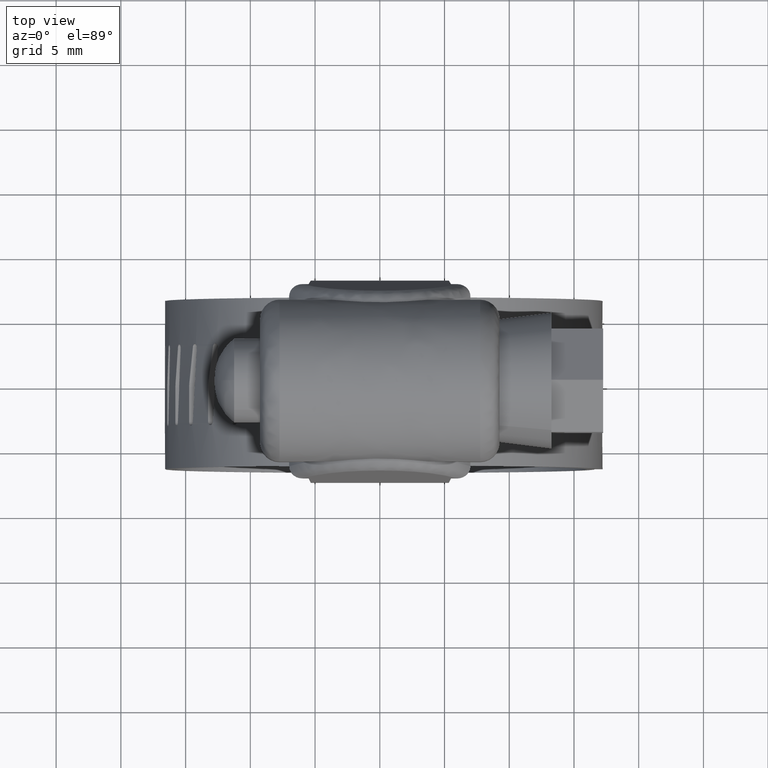
[diagram: clean part render]
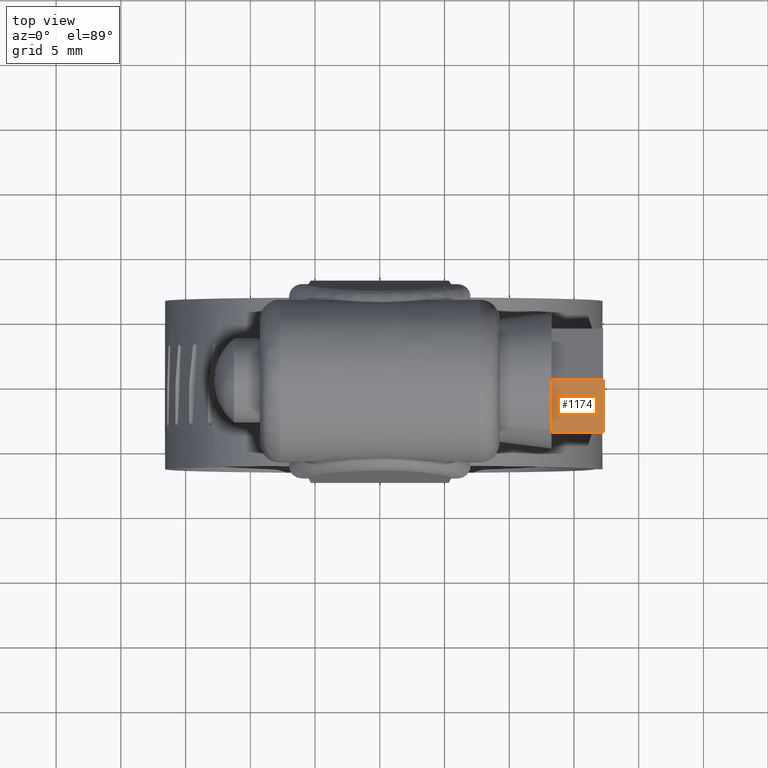
[diagram: same view with one face highlighted and labeled with its STEP entity id]
A machine part, top view. The second image highlights one B-rep face of the part: STEP entity #1174.
In plain terms, the highlighted face is a freeform B-spline surface patch.
Its self-contained STEP definition (entity closure, byte-faithful):
#1139=CARTESIAN_POINT('',(13.050200007752780,0.199799940407278,20.561277545544229));
#1140=CARTESIAN_POINT('',(13.050200007752780,-4.199799797356127,18.021167537046480));
#1141=CARTESIAN_POINT('',(17.449800099535580,0.199799940407278,20.561277545544229));
#1142=CARTESIAN_POINT('',(17.449800099535580,-4.199799797356127,18.021167537046480));
#1143=B_SPLINE_SURFACE_WITH_KNOTS('',1,1,((#1139,#1141),(#1140,#1142)),.UNSPECIFIED.,.F.,.F.,.U.,(2,2),(2,2),(0.0,5.080220143635340),(0.0,4.399600091782808),.UNSPECIFIED.);
#1144=CARTESIAN_POINT('',(17.250000000000000,0.0,20.445923000000100));
#1145=VERTEX_POINT('',#1144);
#1146=CARTESIAN_POINT('',(17.250000000000000,-4.0,18.136521999999999));
#1147=VERTEX_POINT('',#1146);
#1148=CARTESIAN_POINT('',(17.250000000000000,0.0,20.445923000000100));
#1149=CARTESIAN_POINT('',(17.250000000000000,-4.0,18.136521999999999));
#1150=QUASI_UNIFORM_CURVE('',1,(#1148,#1149),.UNSPECIFIED.,.F.,.U.);
#1151=EDGE_CURVE('',#1145,#1147,#1150,.T.);
#1152=ORIENTED_EDGE('',*,*,#1151,.F.);
#1153=CARTESIAN_POINT('',(13.250000000000000,0.0,20.445923000000100));
#1154=VERTEX_POINT('',#1153);
#1155=CARTESIAN_POINT('',(13.250000000000000,0.0,20.445923000000100));
#1156=CARTESIAN_POINT('',(17.250000000000000,0.0,20.445923000000100));
#1157=QUASI_UNIFORM_CURVE('',1,(#1155,#1156),.UNSPECIFIED.,.F.,.U.);
#1158=EDGE_CURVE('',#1154,#1145,#1157,.T.);
#1159=ORIENTED_EDGE('',*,*,#1158,.F.);
#1160=CARTESIAN_POINT('',(13.250000000000000,-4.0,18.136521999999999));
#1161=VERTEX_POINT('',#1160);
#1162=CARTESIAN_POINT('',(13.250000000000000,0.0,20.445923000000100));
#1163=CARTESIAN_POINT('',(13.250000000000000,-4.0,18.136521999999999));
#1164=QUASI_UNIFORM_CURVE('',1,(#1162,#1163),.UNSPECIFIED.,.F.,.U.);
#1165=EDGE_CURVE('',#1154,#1161,#1164,.T.);
#1166=ORIENTED_EDGE('',*,*,#1165,.T.);
#1167=CARTESIAN_POINT('',(13.250000000000000,-4.0,18.136521999999999));
#1168=CARTESIAN_POINT('',(17.250000000000000,-4.0,18.136521999999999));
#1169=QUASI_UNIFORM_CURVE('',1,(#1167,#1168),.UNSPECIFIED.,.F.,.U.);
#1170=EDGE_CURVE('',#1161,#1147,#1169,.T.);
#1171=ORIENTED_EDGE('',*,*,#1170,.T.);
#1172=EDGE_LOOP('',(#1152,#1159,#1166,#1171));
#1173=FACE_OUTER_BOUND('',#1172,.T.);
#1174=ADVANCED_FACE('',(#1173),#1143,.T.);